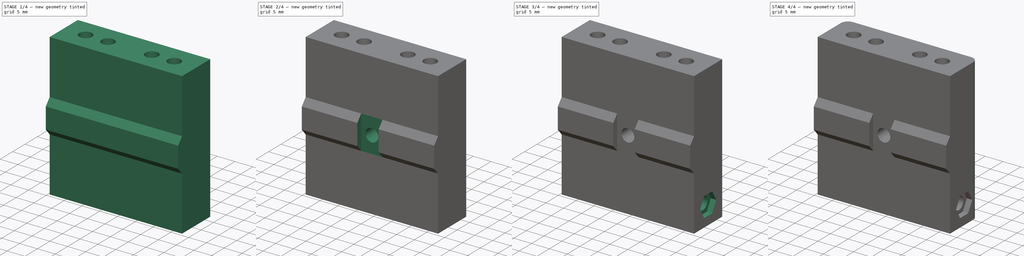
[diagram: build sequence overview — one tinted view per stage of 4, left to right]
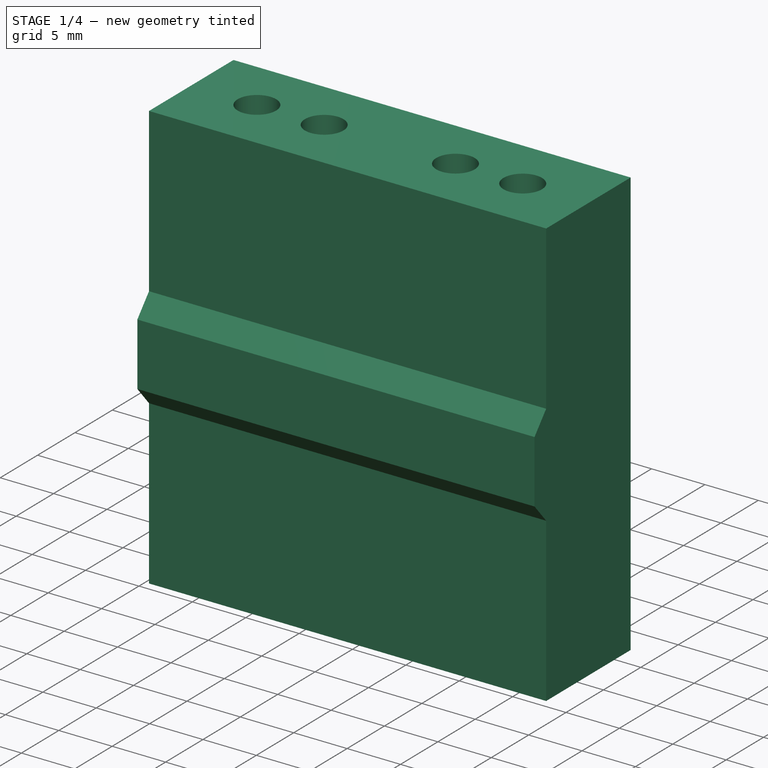
[diagram: stage 1 of 4 — iso view after this stage's code; geometry added in this stage tinted green]
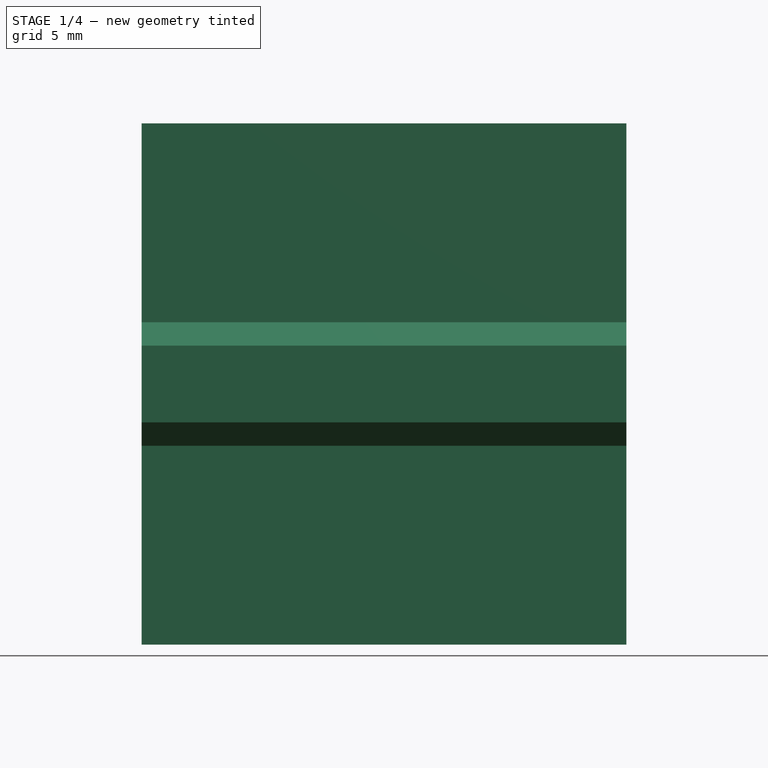
[diagram: stage 1 of 4 — front view after this stage's code; geometry added in this stage tinted green]
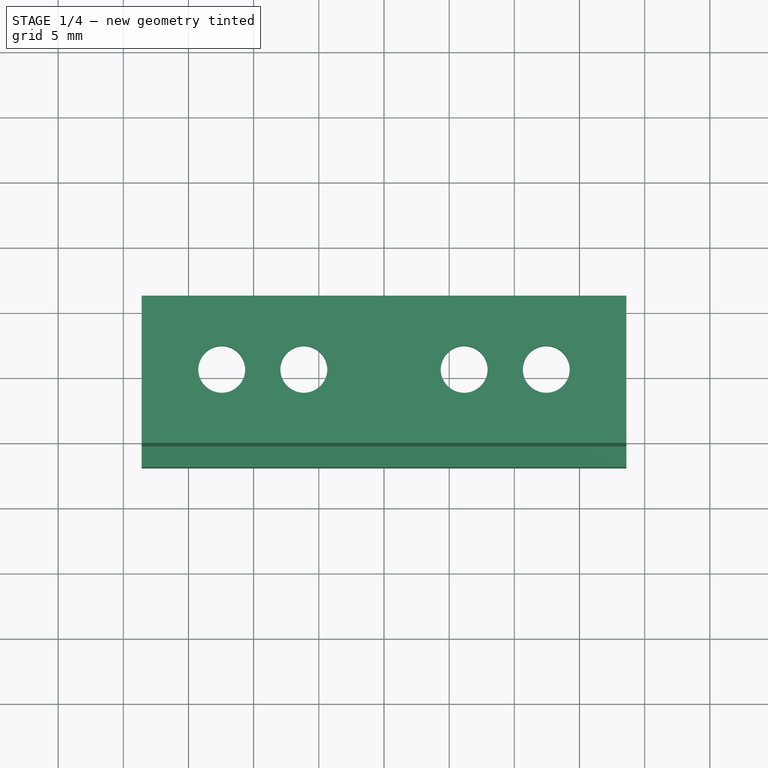
[diagram: stage 1 of 4 — top view after this stage's code; geometry added in this stage tinted green]
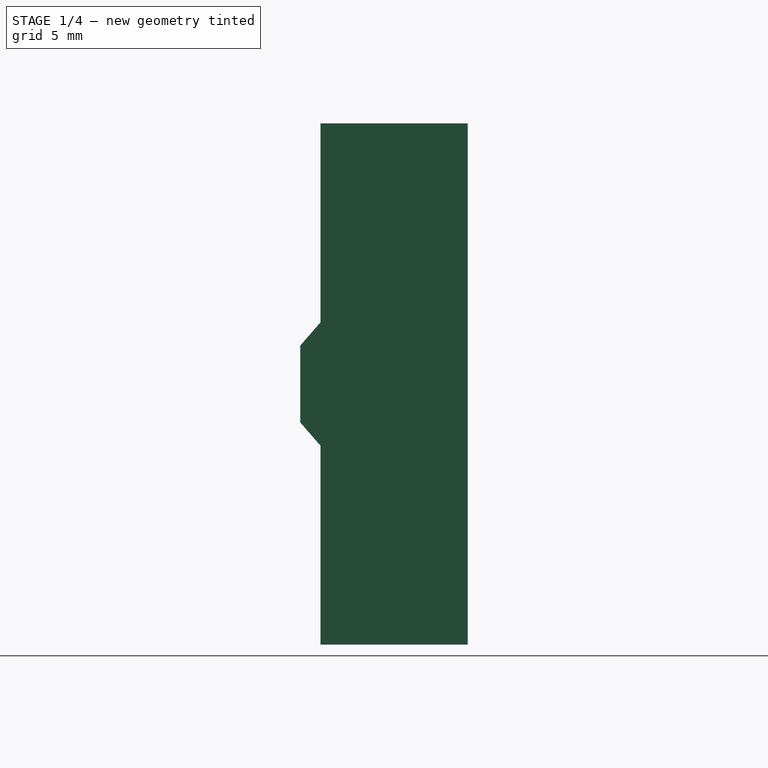
[diagram: stage 1 of 4 — right view after this stage's code; geometry added in this stage tinted green]
FCSTD DOCUMENT  (FreeCAD 0.21R33771 (Git))
Label: suporte-fisivel-reserva
License: All rights reserved
LicenseURL: https://en.wikipedia.org/wiki/All_rights_reserved
objects: Sketcher::SketchObject×9, PartDesign::Pocket×6, PartDesign::Pad×3, PartDesign::Fillet×1, PartDesign::Chamfer×1, PartDesign::Body×1
note: 32 computed .brp shape members not serialized (recipe doc carries the construction recipe); baked Part::Feature solids carry a one-line shape summary decoded from their .brp

FEATURE [Sketcher::SketchObject] Sketch
  FullyConstrained = true
  MapMode = 5
  Support = -> [XY_Plane]
  sketch-geometry (31):
    g0: LineSegment StartX=-18.6 StartY=5.65 StartZ=0 EndX=18.6 EndY=5.65 EndZ=0
    g1: LineSegment StartX=18.6 StartY=5.65 StartZ=0 EndX=18.6 EndY=-5.65 EndZ=0
    g2: LineSegment StartX=18.6 StartY=-5.65 StartZ=0 EndX=-18.6 EndY=-5.65 EndZ=0
    g3: LineSegment StartX=-18.6 StartY=-5.65 StartZ=0 EndX=-18.6 EndY=5.65 EndZ=0
    g4: LineSegment StartX=-18.6 StartY=-5.65 StartZ=0 EndX=-4.74 EndY=-5.65 EndZ=0
    g5: LineSegment StartX=-4.74 StartY=-5.65 StartZ=0 EndX=-2.94 EndY=-7.21 EndZ=0
    g6: LineSegment StartX=-2.94 StartY=-7.21 StartZ=0 EndX=2.94 EndY=-7.21 EndZ=0
    g7: LineSegment StartX=2.94 StartY=-7.21 StartZ=0 EndX=4.74 EndY=-5.65 EndZ=0
    g8: LineSegment StartX=4.74 StartY=-5.65 StartZ=0 EndX=18.6 EndY=-5.65 EndZ=0
    g9: Circle CenterX=-6.15 CenterY=0 CenterZ=0 NormalX=0 NormalY=0 NormalZ=1 AngleXU=0 Radius=3.15
    g10: Circle CenterX=-12.45 CenterY=0 CenterZ=0 NormalX=0 NormalY=0 NormalZ=1 AngleXU=0 Radius=3.15
    g11: Circle CenterX=6.15 CenterY=0 CenterZ=0 NormalX=0 NormalY=0 NormalZ=1 AngleXU=0 Radius=3.15
    g12: Circle CenterX=12.45 CenterY=0 CenterZ=0 NormalX=0 NormalY=0 NormalZ=1 AngleXU=0 Radius=3.15
    g13: LineSegment StartX=-12.45 StartY=0 StartZ=0 EndX=12.45 EndY=0 EndZ=0
    g14: LineSegment StartX=-15.6 StartY=3.15 StartZ=0 EndX=-3 EndY=3.15 EndZ=0
    g15: LineSegment StartX=-3 StartY=3.15 StartZ=0 EndX=-3 EndY=-3.15 EndZ=0
    g16: LineSegment StartX=-3 StartY=-3.15 StartZ=0 EndX=-15.6 EndY=-3.15 EndZ=0
    g17: LineSegment StartX=-15.6 StartY=-3.15 StartZ=0 EndX=-15.6 EndY=3.15 EndZ=0
    g18: LineSegment StartX=3 StartY=3.15 StartZ=0 EndX=15.6 EndY=3.15 EndZ=0
    g19: LineSegment StartX=15.6 StartY=3.15 StartZ=0 EndX=15.6 EndY=-3.15 EndZ=0
    g20: LineSegment StartX=15.6 StartY=-3.15 StartZ=0 EndX=3 EndY=-3.15 EndZ=0
    g21: LineSegment StartX=3 StartY=-3.15 StartZ=0 EndX=3 EndY=3.15 EndZ=0
    g22: LineSegment StartX=-15.6 StartY=3.15 StartZ=0 EndX=-18.6 EndY=3.15 EndZ=0
    g23: ArcOfCircle CenterX=-12.45 CenterY=0 CenterZ=0 NormalX=0 NormalY=0 NormalZ=1 AngleXU=0 Radius=3.15 StartAngle=1.5708 EndAngle=4.71239
    g24: ArcOfCircle CenterX=-6.15 CenterY=0 CenterZ=0 NormalX=0 NormalY=0 NormalZ=1 AngleXU=0 Radius=3.15 StartAngle=4.71239 EndAngle=7.85398
    g25: LineSegment StartX=-12.45 StartY=-3.15 StartZ=0 EndX=-6.15 EndY=-3.15 EndZ=0
    g26: LineSegment StartX=-6.15 StartY=3.15 StartZ=0 EndX=-12.45 EndY=3.15 EndZ=0
    g27: ArcOfCircle CenterX=12.45 CenterY=0 CenterZ=0 NormalX=0 NormalY=0 NormalZ=1 AngleXU=0 Radius=3.15 StartAngle=4.71239 EndAngle=7.85398
    g28: ArcOfCircle CenterX=6.15 CenterY=0 CenterZ=0 NormalX=0 NormalY=0 NormalZ=1 AngleXU=0 Radius=3.15 StartAngle=1.5708 EndAngle=4.71239
    g29: LineSegment StartX=12.45 StartY=3.15 StartZ=0 EndX=6.15 EndY=3.15 EndZ=0
    g30: LineSegment StartX=6.15 StartY=-3.15 StartZ=0 EndX=12.45 EndY=-3.15 EndZ=0
  constraints (79):
    c: Coincident(g0,g1)
    c: Coincident(g1,g2)
    c: Coincident(g2,g3)
    c: Coincident(g3,g0)
    c: Horizontal(g0)
    c: Vertical(g1)
    c: Symmetric(g0,g2,g-1)
    c: Symmetric(g3,g1,g-2)
    c: Coincident(g3,g4)
    c: Coincident(g4,g5)
    c: Coincident(g5,g6)
    c: Coincident(g6,g7)
    c: Coincident(g7,g8)
    c: Coincident(g8,g1)
    c: PointOnObject(g7,g2)
    c: PointOnObject(g4,g2)
    c: Symmetric(g5,g6,g-2)
    c: Equal(g4,g8)
    c: DistanceX(g4,g7) = 9.48
    c: DistanceX(g6,g6) = 5.88
    c: DistanceY(g5,g4) = 1.56
    c: PointOnObject(g9,g-1)
    c: PointOnObject(g10,g-1)
    c: PointOnObject(g11,g-1)
    c: Coincident(g13,g10)
    c: Coincident(g13,g12)
    c: Symmetric(g12,g10,g-2)
    c: Equal(g12,g11)
    c: Equal(g11,g9)
    c: Equal(g9,g10)
    c: Tangent(g9,g10)
    c: Diameter(g12) = 6.3
    c: Coincident(g14,g15)
    c: Coincident(g15,g16)
    c: Coincident(g16,g17)
    c: Coincident(g17,g14)
    c: Horizontal(g14)
    c: Horizontal(g16)
    c: Vertical(g15)
    c: Vertical(g17)
    c: Tangent(g10,g14)
    c: Tangent(g17,g10)
    c: Tangent(g16,g9)
    c: Tangent(g15,g9)
    c: Tangent(g11,g12)
    c: Coincident(g18,g19)
    c: Coincident(g19,g20)
    c: Coincident(g20,g21)
    c: Coincident(g21,g18)
    c: Horizontal(g18)
    c: Horizontal(g20)
    c: Vertical(g19)
    c: Vertical(g21)
    c: Tangent(g19,g12)
    c: Tangent(g21,g11)
    c: Tangent(g18,g12)
    c: Tangent(g20,g12)
    c: DistanceX(g0,g14) = 3
    c: Coincident(g22,g14)
    c: PointOnObject(g22,g3)
    c: Horizontal(g22)
    c: Tangent(g23,g25) = -1.5708
    c: Tangent(g25,g24) = -1.5708
    c: Tangent(g24,g26) = -1.5708
    c: Tangent(g26,g23) = -1.5708
    c: Equal(g23,g24)
    c: Tangent(g27,g29) = -1.5708
    c: Tangent(g29,g28) = -1.5708
    c: Tangent(g28,g30) = -1.5708
    c: Tangent(g30,g27) = -1.5708
    c: Equal(g27,g28)
    c: Coincident(g28,g11)
    c: Coincident(g27,g12)
    c: Equal(g12,g27)
    c: Coincident(g23,g10)
    c: Coincident(g24,g9)
    c: Equal(g10,g23)
    c: DistanceX(g14,g18) = 6
    c: DistanceY(g18,g0) = 2.5
FEATURE [PartDesign::Pad] Pad
  Direction = (0,0,1)
  Length = 40
  Length2 = 10
  Profile = -> Sketch
  ReferenceAxis = -> Sketch [N_Axis]
  Type = 0
FEATURE [Sketcher::SketchObject] Sketch001
  ExternalGeometry = -> [Pad]
  FullyConstrained = true
  MapMode = 5
  Placement = pos=(0,0,40) rot=(0,0,1;0rad)
  Support = -> [Pad]
  sketch-geometry (12):
    g0: ArcOfCircle CenterX=-12.45 CenterY=0 CenterZ=0 NormalX=0 NormalY=0 NormalZ=1 AngleXU=0 Radius=3.15 StartAngle=1.5708 EndAngle=4.71239
    g1: ArcOfCircle CenterX=-6.15 CenterY=0 CenterZ=0 NormalX=0 NormalY=0 NormalZ=1 AngleXU=0 Radius=3.15 StartAngle=4.71239 EndAngle=7.85398
    g2: LineSegment StartX=-12.45 StartY=-3.15 StartZ=0 EndX=-6.15 EndY=-3.15 EndZ=0
    g3: LineSegment StartX=-6.15 StartY=3.15 StartZ=0 EndX=-12.45 EndY=3.15 EndZ=0
    g4: ArcOfCircle CenterX=12.45 CenterY=0 CenterZ=0 NormalX=0 NormalY=0 NormalZ=1 AngleXU=0 Radius=3.15 StartAngle=4.71239 EndAngle=7.85398
    g5: ArcOfCircle CenterX=6.15 CenterY=0 CenterZ=0 NormalX=0 NormalY=0 NormalZ=1 AngleXU=0 Radius=3.15 StartAngle=1.5708 EndAngle=4.71239
    g6: LineSegment StartX=12.45 StartY=3.15 StartZ=0 EndX=6.15 EndY=3.15 EndZ=0
    g7: LineSegment StartX=6.15 StartY=-3.15 StartZ=0 EndX=12.45 EndY=-3.15 EndZ=0
    g8: Circle CenterX=-12.45 CenterY=0 CenterZ=0 NormalX=0 NormalY=0 NormalZ=1 AngleXU=0 Radius=1.8
    g9: Circle CenterX=-6.15 CenterY=0 CenterZ=0 NormalX=0 NormalY=0 NormalZ=1 AngleXU=0 Radius=1.8
    g10: Circle CenterX=6.15 CenterY=0 CenterZ=0 NormalX=0 NormalY=0 NormalZ=1 AngleXU=0 Radius=1.8
    g11: Circle CenterX=12.45 CenterY=0 CenterZ=0 NormalX=0 NormalY=0 NormalZ=1 AngleXU=0 Radius=1.8
  constraints (24):
    c: Tangent(g0,g2) = -1.5708
    c: Tangent(g2,g1) = -1.5708
    c: Tangent(g1,g3) = -1.5708
    c: Tangent(g3,g0) = -1.5708
    c: Equal(g0,g1)
    c: Coincident(g0,g-6)
    c: Tangent(g4,g6) = -1.5708
    c: Tangent(g6,g5) = -1.5708
    c: Tangent(g5,g7) = -1.5708
    c: Tangent(g7,g4) = -1.5708
    c: Equal(g4,g5)
    c: Coincident(g4,g-3)
    c: Coincident(g5,g-4)
    c: Coincident(g1,g-5)
    c: Equal(g1,g-5)
    c: Equal(g-5,g5)
    c: Coincident(g8,g0)
    c: Coincident(g10,g5)
    c: Coincident(g11,g4)
    c: Coincident(g9,g1)
    c: Equal(g9,g8)
    c: Equal(g8,g10)
    c: Equal(g10,g11)
    c: Diameter(g10) = 3.6
FEATURE [PartDesign::Pad] Pad001
  BaseFeature = -> Pad
  Direction = (0,0,1)
  Length = 2.5
  Length2 = 10
  Profile = -> Sketch001
  ReferenceAxis = -> Sketch001 [N_Axis]
  Reversed = true
  Type = 0
FEATURE [Sketcher::SketchObject] Sketch002
  ExternalGeometry = -> [Pad001]
  FullyConstrained = true
  MapMode = 5
  Placement = pos=(18.6,0,0) rot=(0.57735,0.57735,0.57735;2.0944rad)
  Support = -> [Pad001]
  sketch-geometry (5):
    g0: LineSegment StartX=-5.65 StartY=24.74 StartZ=0 EndX=-5.65 EndY=15.26 EndZ=0
    g1: LineSegment StartX=-5.65 StartY=15.26 StartZ=0 EndX=-7.21 EndY=17.06 EndZ=0
    g2: LineSegment StartX=-7.21 StartY=17.06 StartZ=0 EndX=-7.21 EndY=22.94 EndZ=0
    g3: LineSegment StartX=-7.21 StartY=22.94 StartZ=0 EndX=-5.65 EndY=24.74 EndZ=0
    g4: LineSegment StartX=-7.21 StartY=20 StartZ=0 EndX=0 EndY=20 EndZ=0
  constraints (13):
    c: Coincident(g0,g1)
    c: Coincident(g1,g2)
    c: Coincident(g2,g3)
    c: Coincident(g3,g0)
    c: Symmetric(g-3,g-3,g4)
    c: Symmetric(g0,g0,g4)
    c: Symmetric(g1,g2,g4)
    c: PointOnObject(g0,g-3)
    c: DistanceY(g0,g0) = 9.48
    c: DistanceY(g2,g2) = 5.88
    c: DistanceX(g2,g0) = 1.56
    c: PointOnObject(g4,g2)
    c: PointOnObject(g4,g-2)
FEATURE [PartDesign::Pad] Pad002
  BaseFeature = -> Pad001
  Direction = (1,0,0)
  Length = 10
  Length2 = 10
  Profile = -> Sketch002
  ReferenceAxis = -> Sketch002 [N_Axis]
  Type = 3
  UpToFace = -> Pad001 [Face2]
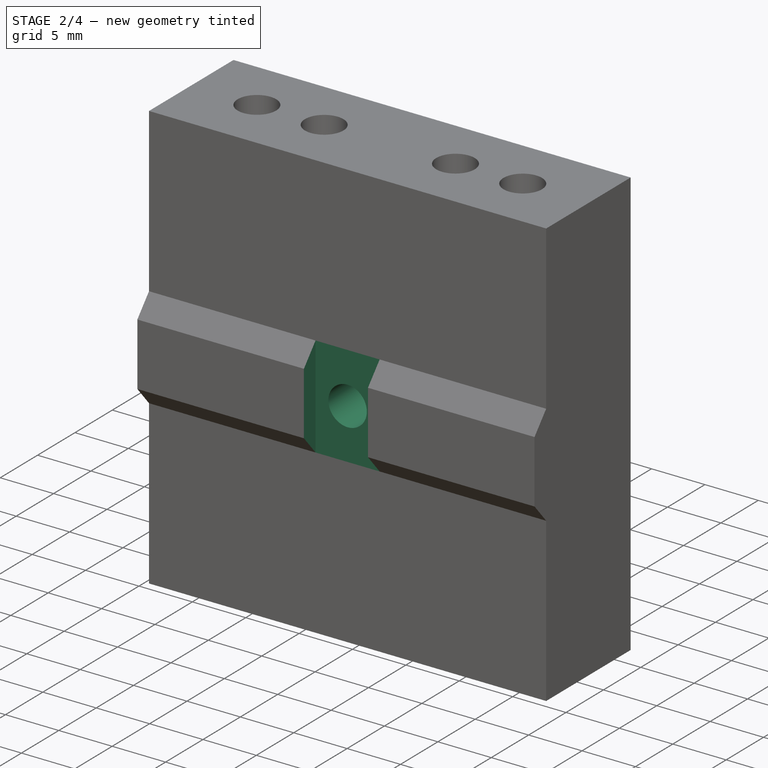
[diagram: stage 2 of 4 — iso view after this stage's code; geometry added in this stage tinted green]
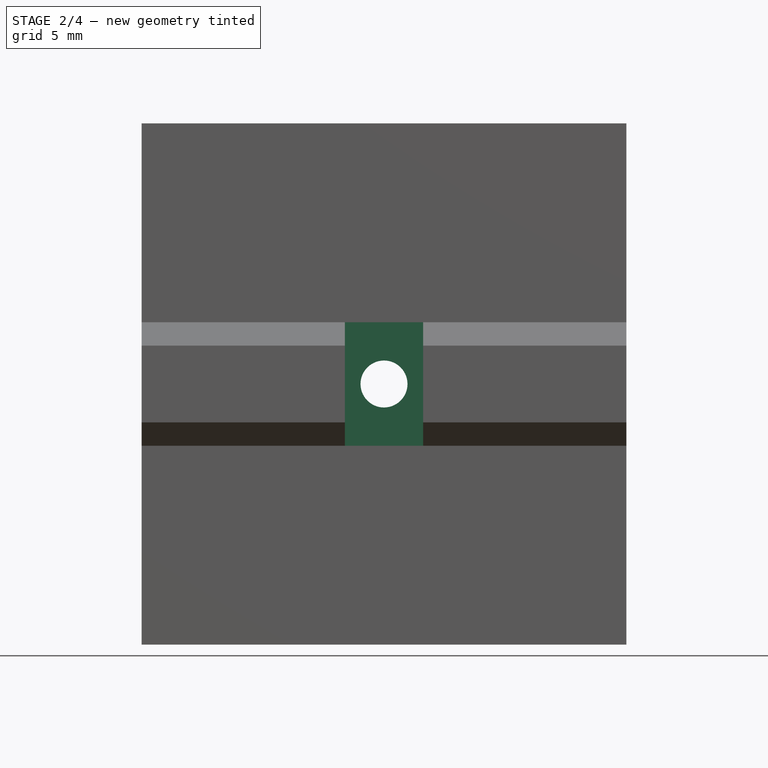
[diagram: stage 2 of 4 — front view after this stage's code; geometry added in this stage tinted green]
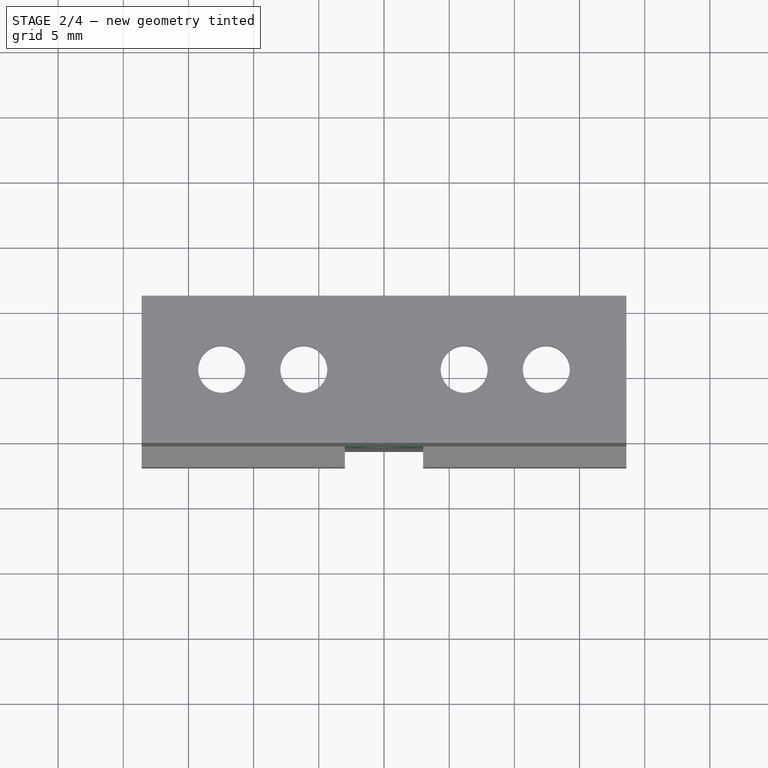
[diagram: stage 2 of 4 — top view after this stage's code; geometry added in this stage tinted green]
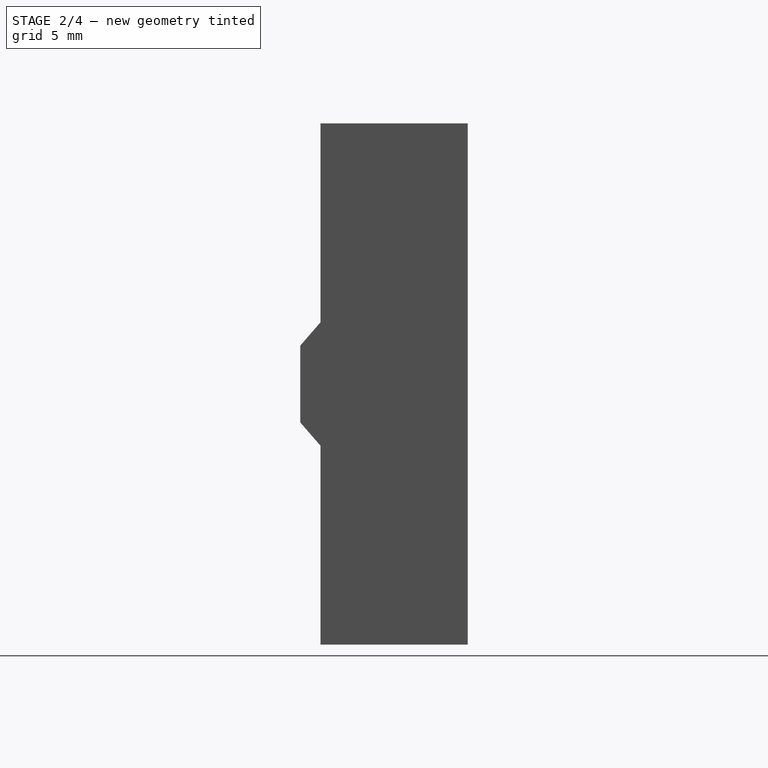
[diagram: stage 2 of 4 — right view after this stage's code; geometry added in this stage tinted green]
FEATURE [Sketcher::SketchObject] Sketch003
  ExternalGeometry = -> [Pad002]
  FullyConstrained = true
  MapMode = 5
  Placement = pos=(0,-7.21,0) rot=(1,0,0;1.5708rad)
  Support = -> [Pad002]
  sketch-geometry (2):
    g0: LineSegment StartX=0 StartY=20 StartZ=0 EndX=-18.6 EndY=20 EndZ=0
    g1: Circle CenterX=0 CenterY=20 CenterZ=0 NormalX=0 NormalY=0 NormalZ=1 AngleXU=0 Radius=1.8
  constraints (5):
    c: PointOnObject(g0,g-2)
    c: PointOnObject(g0,g-3)
    c: Symmetric(g-3,g-3,g0)
    c: Coincident(g1,g0)
    c: Diameter(g1) = 3.6
FEATURE [PartDesign::Pocket] Pocket
  BaseFeature = -> Pad002
  Direction = (0,1,-2e-16)
  Length = 5
  Length2 = 5
  Profile = -> Sketch003
  ReferenceAxis = -> Sketch003 [N_Axis]
  Type = 1
FEATURE [Sketcher::SketchObject] Sketch004
  ExternalGeometry = -> [Pocket]
  FullyConstrained = true
  MapMode = 5
  Placement = pos=(0,-7.21,0) rot=(1,0,0;1.5708rad)
  Support = -> [Pocket]
  sketch-geometry (5):
    g0: LineSegment StartX=-3 StartY=24.74 StartZ=0 EndX=3 EndY=24.74 EndZ=0
    g1: LineSegment StartX=3 StartY=24.74 StartZ=0 EndX=3 EndY=15.26 EndZ=0
    g2: LineSegment StartX=3 StartY=15.26 StartZ=0 EndX=-3 EndY=15.26 EndZ=0
    g3: LineSegment StartX=-3 StartY=15.26 StartZ=0 EndX=-3 EndY=24.74 EndZ=0
    g4: Circle CenterX=0 CenterY=20 CenterZ=0 NormalX=0 NormalY=0 NormalZ=1 AngleXU=0 Radius=3
  constraints (14):
    c: Coincident(g0,g1)
    c: Coincident(g1,g2)
    c: Coincident(g2,g3)
    c: Coincident(g3,g0)
    c: Horizontal(g0)
    c: Horizontal(g2)
    c: Vertical(g1)
    c: Vertical(g3)
    c: PointOnObject(g0,g-4)
    c: PointOnObject(g1,g-5)
    c: Coincident(g4,g-3)
    c: Tangent(g4,g3)
    c: Tangent(g1,g4)
    c: Diameter(g4) = 6
FEATURE [PartDesign::Pocket] Pocket001
  BaseFeature = -> Pocket
  Direction = (0,1,-2e-16)
  Length = 0
  Length2 = 5
  Profile = -> Sketch004
  ReferenceAxis = -> Sketch004 [N_Axis]
  Type = 3
  UpToFace = -> Pocket [Face9]
FEATURE [Sketcher::SketchObject] Sketch005
  ExternalGeometry = -> [Pocket001]
  FullyConstrained = true
  MapMode = 5
  Placement = pos=(0,5.65,0) rot=(0,0.707107,0.707107;3.14159rad)
  Support = -> [Pocket001]
  sketch-geometry (1):
    g0: Circle CenterX=0 CenterY=20 CenterZ=0 NormalX=0 NormalY=0 NormalZ=1 AngleXU=0 Radius=2.8
  constraints (2):
    c: Coincident(g0,g-3)
    c: Diameter(g0) = 5.6
FEATURE [PartDesign::Pocket] Pocket002
  BaseFeature = -> Pocket001
  Direction = (0,-1,2e-16)
  Length = 4
  Length2 = 5
  Profile = -> Sketch005
  ReferenceAxis = -> Sketch005 [N_Axis]
  Type = 0
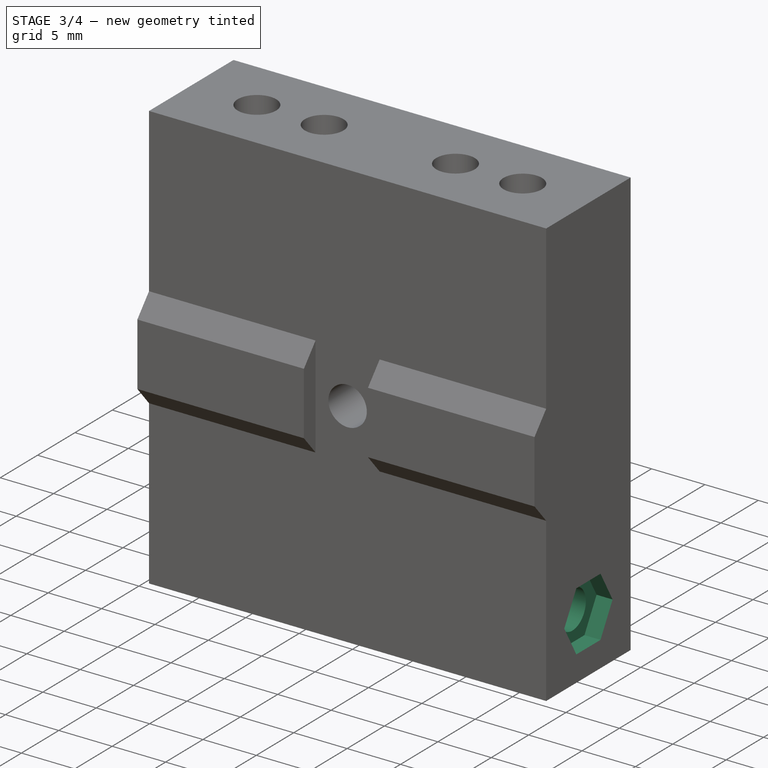
[diagram: stage 3 of 4 — iso view after this stage's code; geometry added in this stage tinted green]
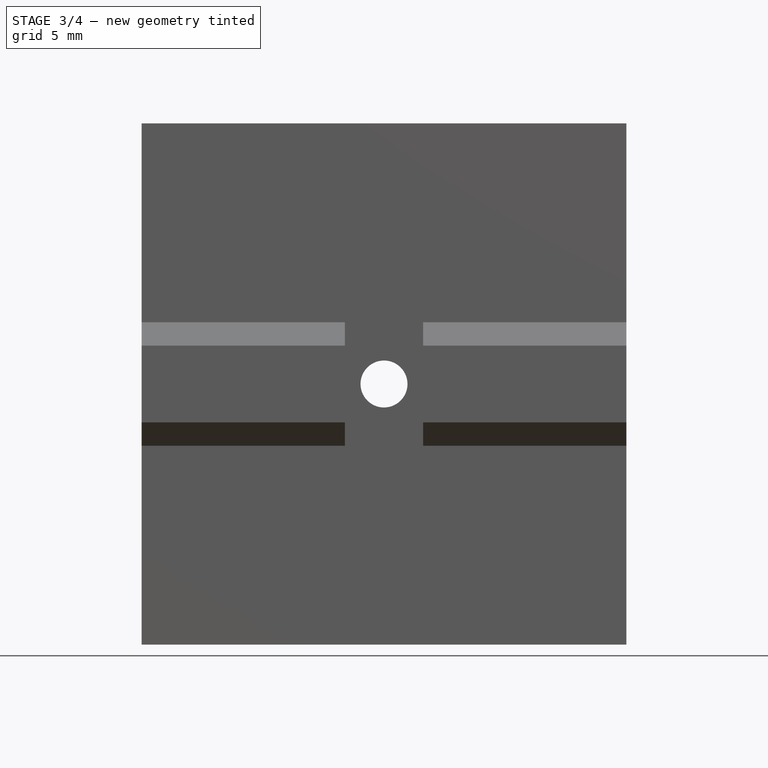
[diagram: stage 3 of 4 — front view after this stage's code; geometry added in this stage tinted green]
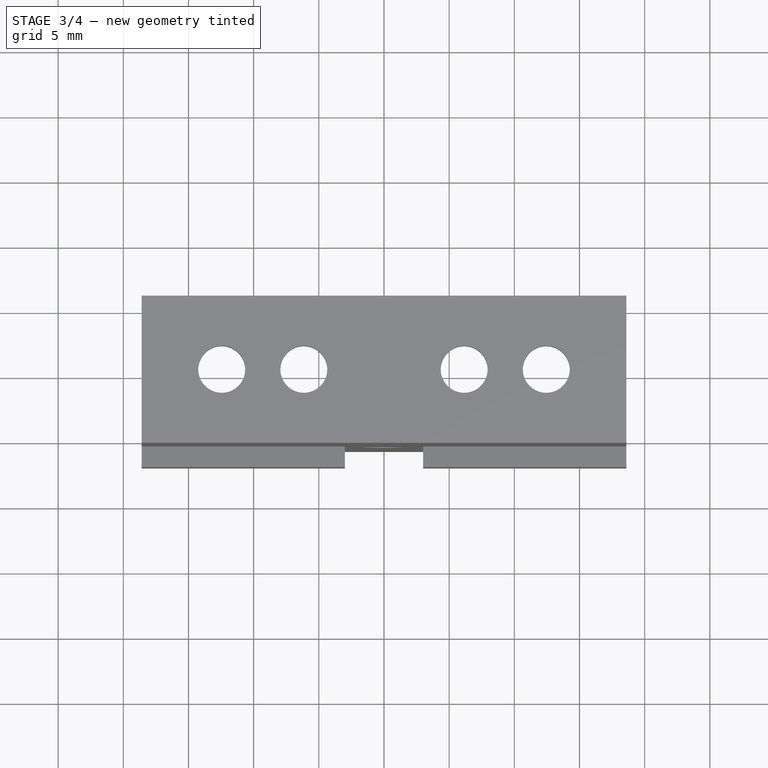
[diagram: stage 3 of 4 — top view after this stage's code; geometry added in this stage tinted green]
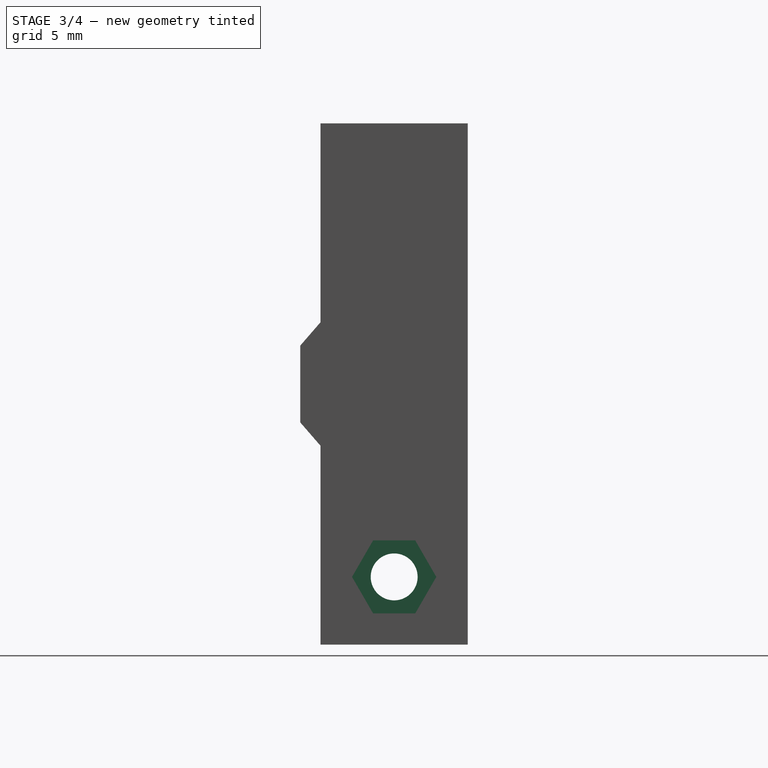
[diagram: stage 3 of 4 — right view after this stage's code; geometry added in this stage tinted green]
FEATURE [Sketcher::SketchObject] Sketch006
  ExternalGeometry = -> [Pocket002]
  FullyConstrained = true
  MapMode = 5
  Placement = pos=(18.6,0,0) rot=(0.57735,0.57735,0.57735;2.0944rad)
  Support = -> [Pocket002]
  sketch-geometry (6):
    g0: Circle CenterX=0 CenterY=5.2 CenterZ=0 NormalX=0 NormalY=0 NormalZ=1 AngleXU=0 Radius=1.8
    g1: LineSegment StartX=-1.8 StartY=7 StartZ=0 EndX=1.8 EndY=7 EndZ=0
    g2: LineSegment StartX=1.8 StartY=7 StartZ=0 EndX=1.8 EndY=3.4 EndZ=0
    g3: LineSegment StartX=1.8 StartY=3.4 StartZ=0 EndX=-1.8 EndY=3.4 EndZ=0
    g4: LineSegment StartX=-1.8 StartY=3.4 StartZ=0 EndX=-1.8 EndY=7 EndZ=0
    g5: Circle CenterX=0 CenterY=5.2 CenterZ=0 NormalX=0 NormalY=0 NormalZ=1 AngleXU=0 Radius=2.8
  constraints (18):
    c: DistanceY(g-3,g-3) = 40
    c: PointOnObject(g0,g-2)
    c: Diameter(g0) = 3.6
    c: Coincident(g1,g2)
    c: Coincident(g2,g3)
    c: Coincident(g3,g4)
    c: Coincident(g4,g1)
    c: Horizontal(g1)
    c: Horizontal(g3)
    c: Vertical(g2)
    c: Vertical(g4)
    c: Tangent(g3,g0)
    c: Tangent(g1,g0)
    c: Tangent(g4,g0)
    c: Tangent(g2,g0)
    c: DistanceY(g1,g-4) = 30.5
    c: Coincident(g5,g0)
    c: Diameter(g5) = 5.6
FEATURE [PartDesign::Pocket] Pocket003
  BaseFeature = -> Pocket002
  Direction = (-1,0,0)
  Length = 5
  Length2 = 5
  Profile = -> Sketch006
  ReferenceAxis = -> Sketch006 [N_Axis]
  Type = 1
FEATURE [Sketcher::SketchObject] Sketch007
  ExternalGeometry = -> [Pocket003]
  FullyConstrained = true
  MapMode = 5
  Placement = pos=(18.6,0,0) rot=(0.57735,0.57735,0.57735;2.0944rad)
  Support = -> [Pocket003]
  sketch-geometry (8):
    g0: Circle CenterX=0 CenterY=5.2 CenterZ=0 NormalX=0 NormalY=0 NormalZ=1 AngleXU=0 Radius=2.8
    g1: LineSegment StartX=1.61658 StartY=8 StartZ=0 EndX=-1.61658 EndY=8 EndZ=0
    g2: LineSegment StartX=-1.61658 StartY=8 StartZ=0 EndX=-3.23316 EndY=5.2 EndZ=0
    g3: LineSegment StartX=-3.23316 StartY=5.2 StartZ=0 EndX=-1.61658 EndY=2.4 EndZ=0
    g4: LineSegment StartX=-1.61658 StartY=2.4 StartZ=0 EndX=1.61658 EndY=2.4 EndZ=0
    g5: LineSegment StartX=1.61658 StartY=2.4 StartZ=0 EndX=3.23316 EndY=5.2 EndZ=0
    g6: LineSegment StartX=3.23316 StartY=5.2 StartZ=0 EndX=1.61658 EndY=8 EndZ=0
    g7: Circle CenterX=0 CenterY=5.2 CenterZ=0 NormalX=0 NormalY=0 NormalZ=1 AngleXU=0 Radius=3.23316
  constraints (18):
    c: Coincident(g0,g-3)
    c: Diameter(g0) = 5.6
    c: Coincident(g1,g2)
    c: Coincident(g2,g3)
    c: Coincident(g3,g4)
    c: Coincident(g4,g5)
    c: Coincident(g5,g6)
    c: Coincident(g6,g1)
    c: Equal(g1, g2-g6) x5
    c: PointOnObject(g1,g7)
    c: PointOnObject(g2,g7)
    c: PointOnObject(g3,g7)
    c: PointOnObject(g4,g7)
    c: PointOnObject(g5,g7)
    c: PointOnObject(g6,g7)
    c: Coincident(g7,g0)
    c: DistanceY(g4,g1) = 5.6
    c: Horizontal(g1)
FEATURE [PartDesign::Pocket] Pocket004
  BaseFeature = -> Pocket003
  Direction = (-1,0,0)
  Length = 1.5
  Length2 = 5
  Profile = -> Sketch007
  ReferenceAxis = -> Sketch007 [N_Axis]
  Type = 0
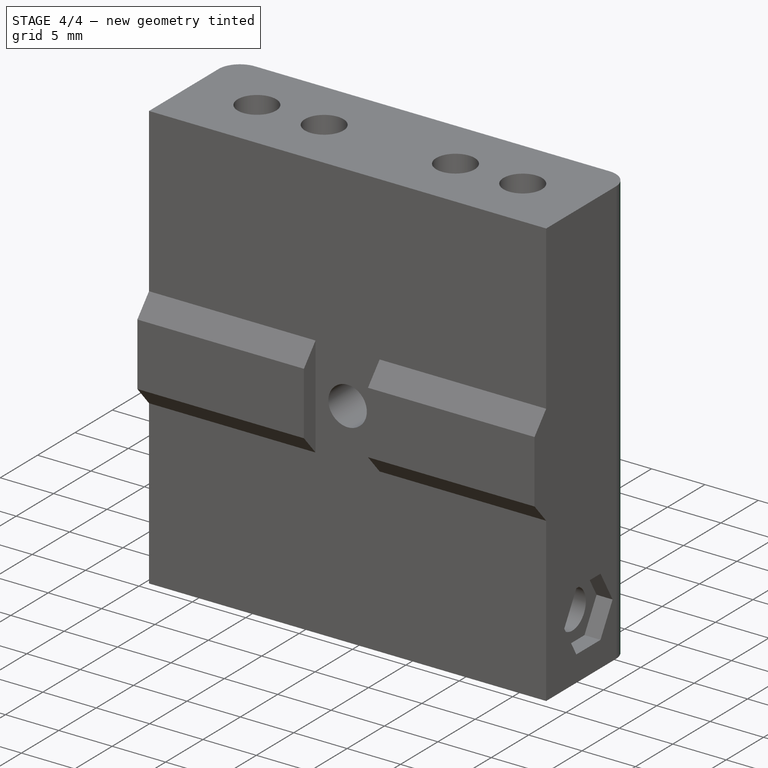
[diagram: stage 4 of 4 — iso view after this stage's code; geometry added in this stage tinted green]
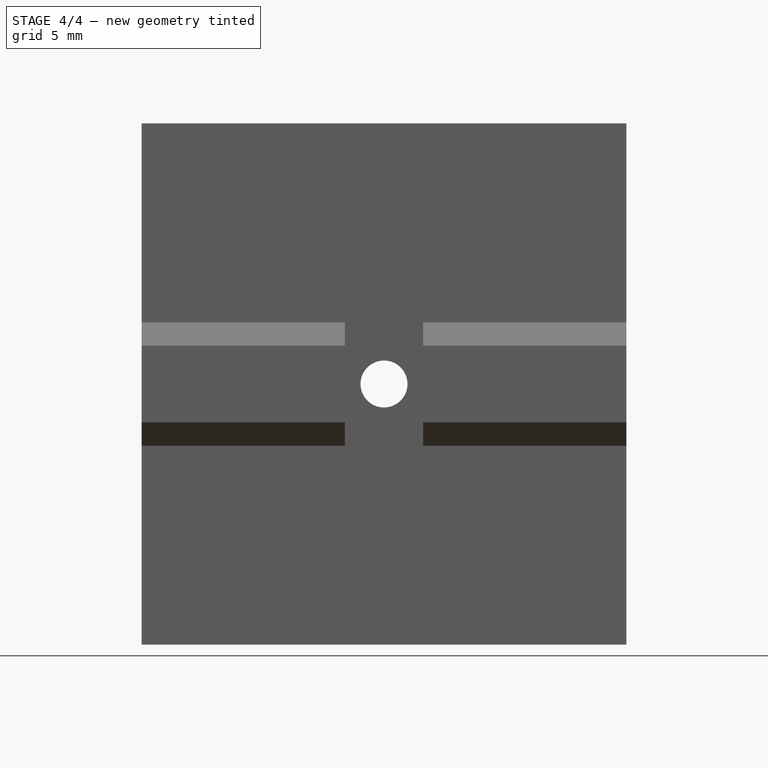
[diagram: stage 4 of 4 — front view after this stage's code; geometry added in this stage tinted green]
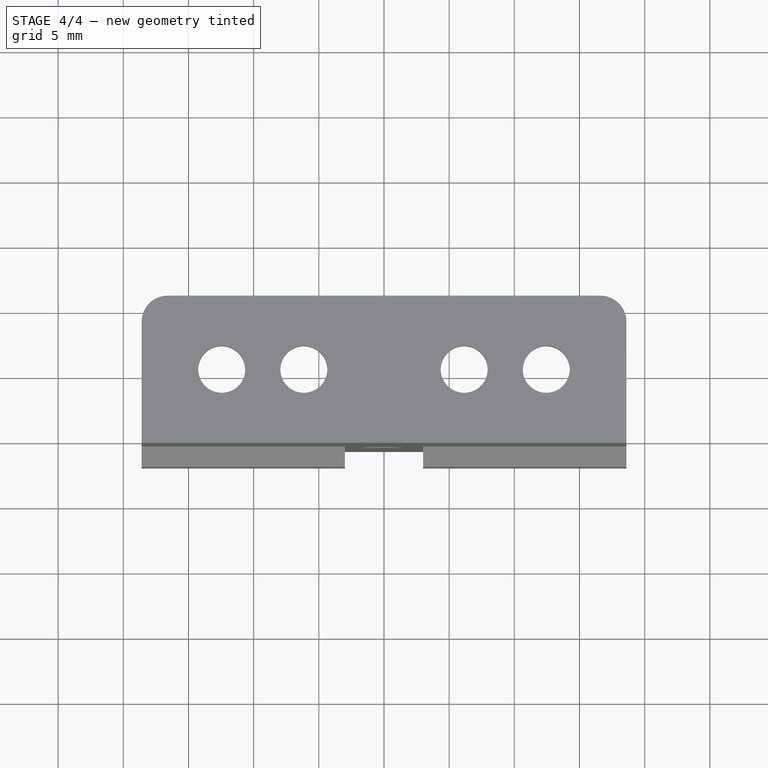
[diagram: stage 4 of 4 — top view after this stage's code; geometry added in this stage tinted green]
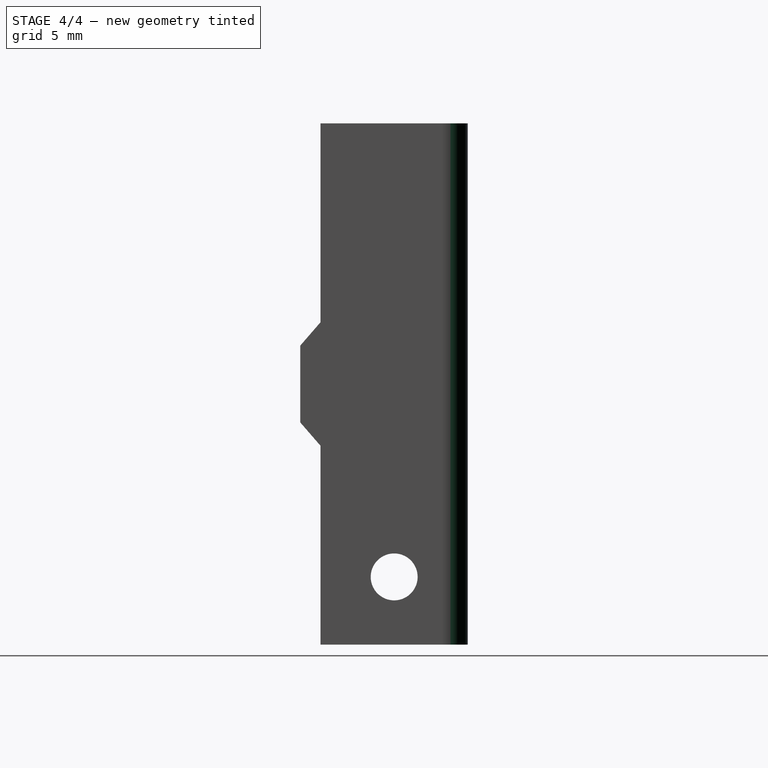
[diagram: stage 4 of 4 — right view after this stage's code; geometry added in this stage tinted green]
FEATURE [Sketcher::SketchObject] Sketch008
  ExternalGeometry = -> [Pocket004]
  FullyConstrained = true
  MapMode = 5
  Placement = pos=(-18.6,0,0) rot=(0.57735,-0.57735,-0.57735;2.0944rad)
  Support = -> [Pocket004]
  sketch-geometry (7):
    g0: LineSegment StartX=1.61658 StartY=8 StartZ=0 EndX=-1.61658 EndY=8 EndZ=0
    g1: LineSegment StartX=-1.61658 StartY=8 StartZ=0 EndX=-3.23316 EndY=5.2 EndZ=0
    g2: LineSegment StartX=-3.23316 StartY=5.2 StartZ=0 EndX=-1.61658 EndY=2.4 EndZ=0
    g3: LineSegment StartX=-1.61658 StartY=2.4 StartZ=0 EndX=1.61658 EndY=2.4 EndZ=0
    g4: LineSegment StartX=1.61658 StartY=2.4 StartZ=0 EndX=3.23316 EndY=5.2 EndZ=0
    g5: LineSegment StartX=3.23316 StartY=5.2 StartZ=0 EndX=1.61658 EndY=8 EndZ=0
    g6: Circle CenterX=0 CenterY=5.2 CenterZ=0 NormalX=0 NormalY=0 NormalZ=1 AngleXU=0 Radius=3.23316
  constraints (15):
    c: Coincident(g0,g1)
    c: Coincident(g1,g2)
    c: Coincident(g2,g3)
    c: Coincident(g3,g4)
    c: Coincident(g4,g5)
    c: Coincident(g5,g0)
    c: Equal(g0, g1-g5) x5
    c: PointOnObject(g0,g6)
    c: PointOnObject(g1,g6)
    c: PointOnObject(g2,g6)
    c: PointOnObject(g3,g6)
    c: PointOnObject(g4,g6)
    c: PointOnObject(g5,g6)
    c: Coincident(g6,g-4)
    c: Coincident(g5,g-3)
FEATURE [PartDesign::Pocket] Pocket005
  BaseFeature = -> Pocket004
  Direction = (1,0,0)
  Length = 1.5
  Length2 = 5
  Profile = -> Sketch008
  ReferenceAxis = -> Sketch008 [N_Axis]
  Type = 0
FEATURE [PartDesign::Fillet] Fillet
  Base = -> Pocket005 [Edge1,Edge4]
  BaseFeature = -> Pocket005
  Radius = 2
  SupportTransform = false
  UseAllEdges = false
FEATURE [PartDesign::Chamfer] Chamfer
  Angle = 45
  Base = -> Fillet [Edge5]
  BaseFeature = -> Fillet
  ChamferType = 0
  FlipDirection = false
  Size = 1.5
  Size2 = 1
  SupportTransform = false
  UseAllEdges = false
FEATURE [PartDesign::Body] Body
  Group = -> [Sketch,Pad,Sketch001,Pad001,Sketch002,Pad002,Sketch003,Pocket,Sketch004,Pocket001,Sketch005,Pocket002,Sketch006,Pocket003,Sketch007,Pocket004,Sketch008,Pocket005,Fillet,Chamfer]
  Origin = -> Origin
  Tip = -> Chamfer
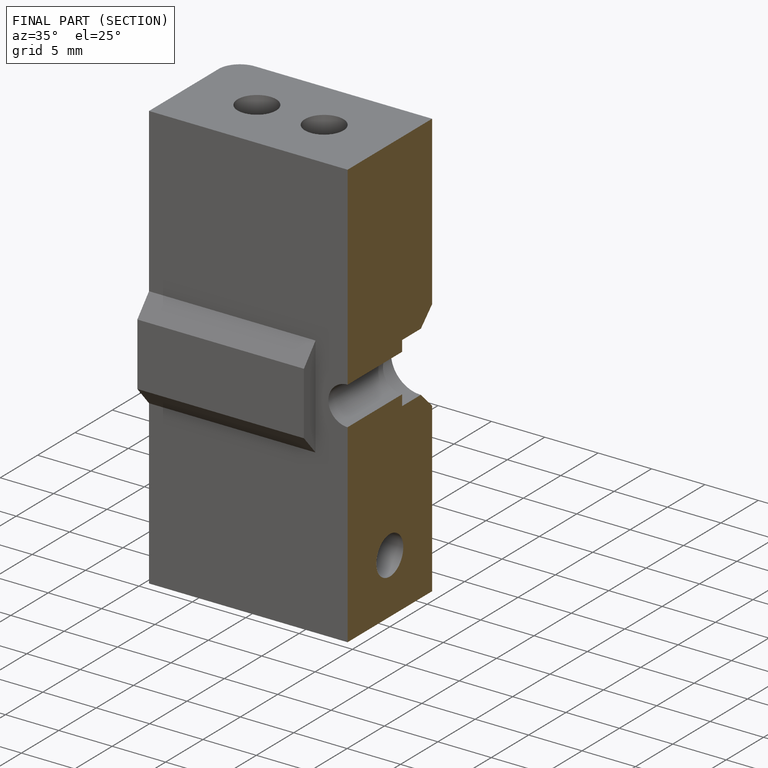
[diagram: finished part — half-section view (interior)]
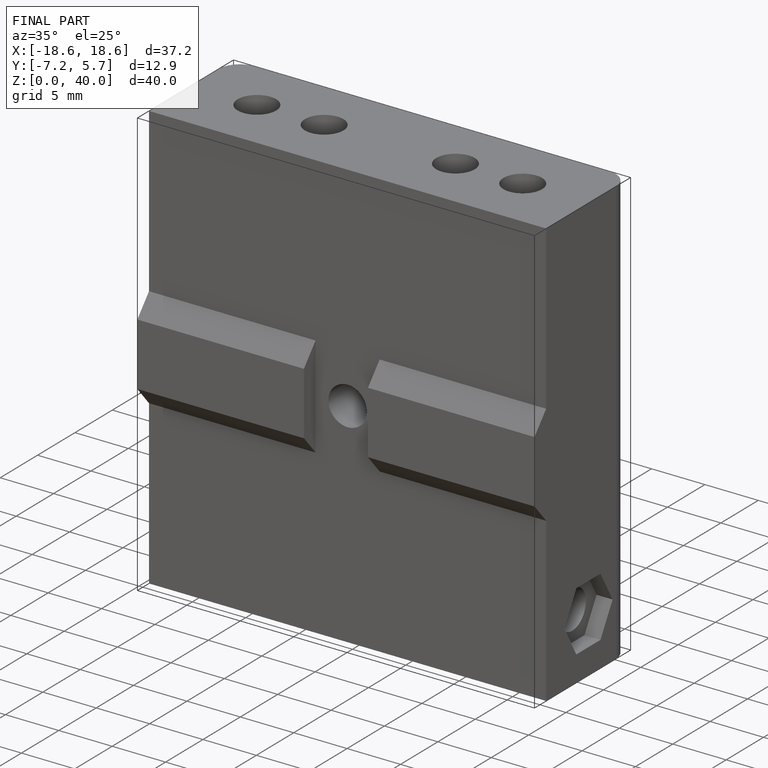
[diagram: finished part — iso view with bounding-box wireframe]
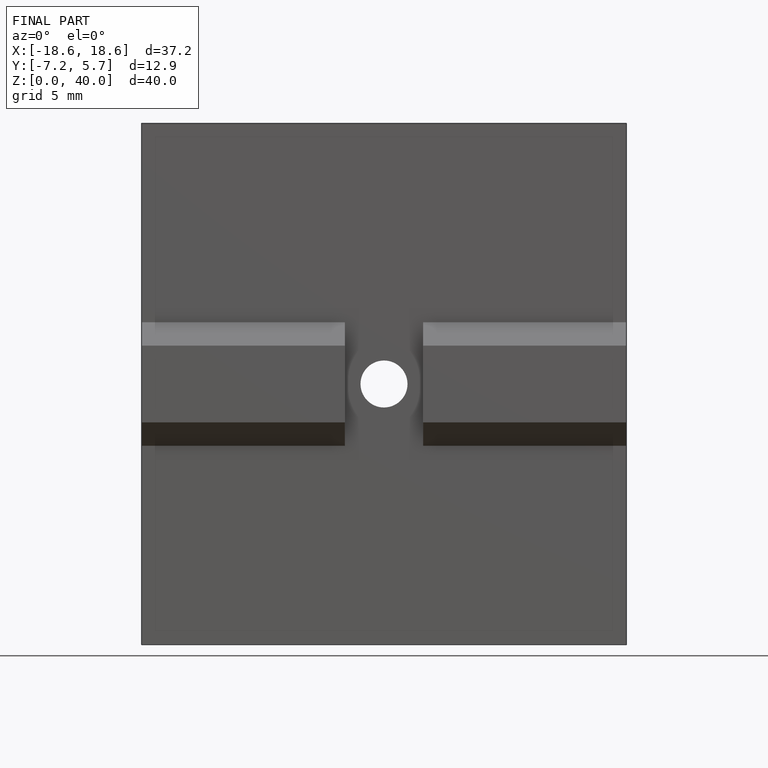
[diagram: finished part — front view with bounding-box wireframe]
